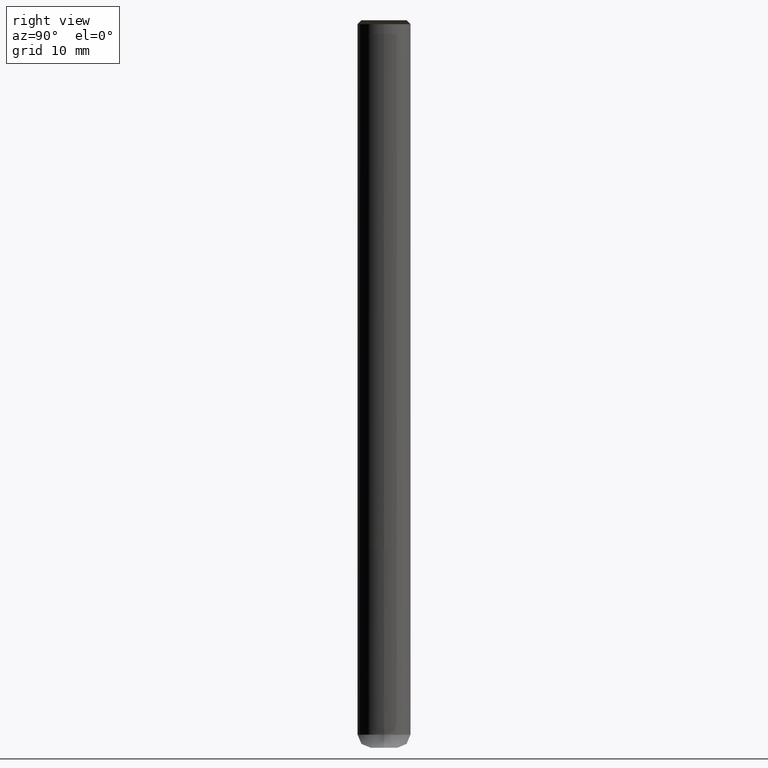
[diagram: clean part render]
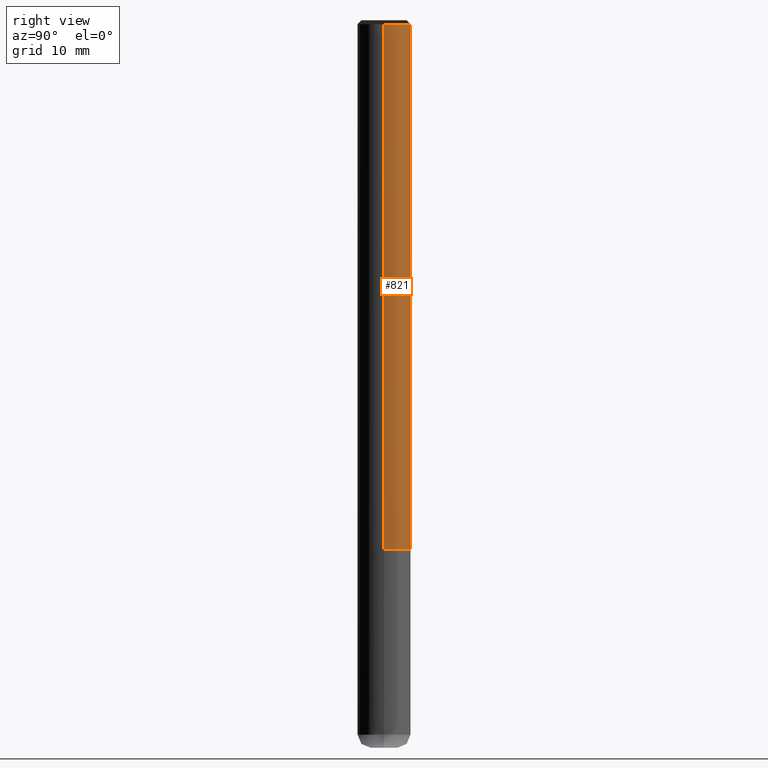
[diagram: same view with one face highlighted and labeled with its STEP entity id]
A machine part, right view. The second image highlights one B-rep face of the part: STEP entity #821.
In plain terms, the highlighted face is a freeform B-spline surface patch.
Its self-contained STEP definition (entity closure, byte-faithful):
#586=CARTESIAN_POINT('',(4.0,0.0,0.0));
#587=CARTESIAN_POINT('',(4.0,4.0,0.0));
#588=CARTESIAN_POINT('',(0.0,4.0,0.0));
#589=CARTESIAN_POINT('',(-4.0,4.0,0.0));
#590=CARTESIAN_POINT('',(-4.0,0.0,0.0));
#591=CARTESIAN_POINT('',(4.0,0.0,79.4));
#592=CARTESIAN_POINT('',(4.0,4.0,79.4));
#593=CARTESIAN_POINT('',(0.0,4.0,79.4));
#594=CARTESIAN_POINT('',(-4.0,4.0,79.4));
#595=CARTESIAN_POINT('',(-4.0,0.0,79.4));
#802=(
BOUNDED_SURFACE()
B_SPLINE_SURFACE(1,2,(
(#586,#587,#588,#589,#590),
(#591,#592,#593,#594,#595)
), .UNSPECIFIED.,.F.,.F.,.F.)
B_SPLINE_SURFACE_WITH_KNOTS((2,2),(3,2,3),(
0.0,1.0),(
0.0,0.5,1.0), .UNSPECIFIED.)
GEOMETRIC_REPRESENTATION_ITEM()
RATIONAL_B_SPLINE_SURFACE(((1.0,0.707106781187,1.0,0.707106781187,1.0),
(1.0,0.707106781187,1.0,0.707106781187,1.0)
))
REPRESENTATION_ITEM('')
SURFACE()
);
#803=(
BOUNDED_CURVE()
B_SPLINE_CURVE(2,(#591,#592,#593,#594,#595),.UNSPECIFIED.,.F.,.F.)
B_SPLINE_CURVE_WITH_KNOTS((3,2,3),
(0.0,0.5,1.0),.UNSPECIFIED.)
CURVE()
GEOMETRIC_REPRESENTATION_ITEM()
RATIONAL_B_SPLINE_CURVE((1.0,0.707106781187,1.0,0.707106781187,1.0))
REPRESENTATION_ITEM('')
);
#804=(
BOUNDED_CURVE()
B_SPLINE_CURVE(1,(#595,#590),.UNSPECIFIED.,.F.,.F.)
B_SPLINE_CURVE_WITH_KNOTS((2,2),
(0.0,1.0),.UNSPECIFIED.)
CURVE()
GEOMETRIC_REPRESENTATION_ITEM()
RATIONAL_B_SPLINE_CURVE((1.0,1.0))
REPRESENTATION_ITEM('')
);
#805=(
BOUNDED_CURVE()
B_SPLINE_CURVE(2,(#590,#589,#588,#587,#586),.UNSPECIFIED.,.F.,.F.)
B_SPLINE_CURVE_WITH_KNOTS((3,2,3),
(0.0,0.5,1.0),.UNSPECIFIED.)
CURVE()
GEOMETRIC_REPRESENTATION_ITEM()
RATIONAL_B_SPLINE_CURVE((1.0,0.707106781187,1.0,0.707106781187,1.0))
REPRESENTATION_ITEM('')
);
#806=(
BOUNDED_CURVE()
B_SPLINE_CURVE(1,(#586,#591),.UNSPECIFIED.,.F.,.F.)
B_SPLINE_CURVE_WITH_KNOTS((2,2),
(0.0,1.0),.UNSPECIFIED.)
CURVE()
GEOMETRIC_REPRESENTATION_ITEM()
RATIONAL_B_SPLINE_CURVE((1.0,1.0))
REPRESENTATION_ITEM('')
);
#807=VERTEX_POINT('',#586);
#808=VERTEX_POINT('',#590);
#809=VERTEX_POINT('',#591);
#810=VERTEX_POINT('',#595);
#811=EDGE_CURVE('',#809,#810,#803,.T.);
#812=EDGE_CURVE('',#810,#808,#804,.T.);
#813=EDGE_CURVE('',#808,#807,#805,.T.);
#814=EDGE_CURVE('',#807,#809,#806,.T.);
#815=ORIENTED_EDGE('',*,*,#811,.T.);
#816=ORIENTED_EDGE('',*,*,#812,.T.);
#817=ORIENTED_EDGE('',*,*,#813,.T.);
#818=ORIENTED_EDGE('',*,*,#814,.T.);
#819=EDGE_LOOP('',(#815,#816,#817,#818));
#820=FACE_OUTER_BOUND('',#819,.T.);
#821=ADVANCED_FACE('',(#820),#802,.T.);